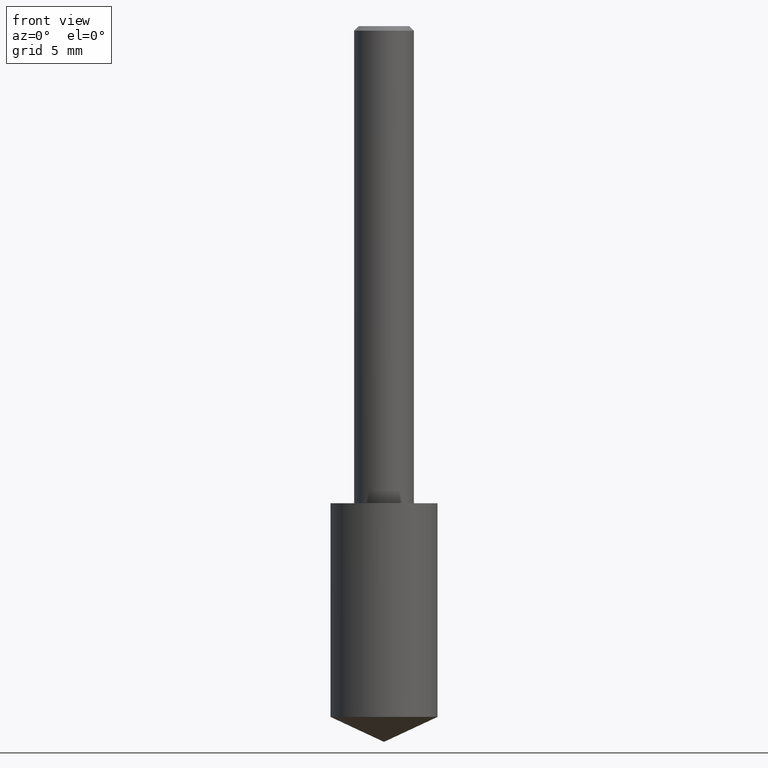
[diagram: clean part render]
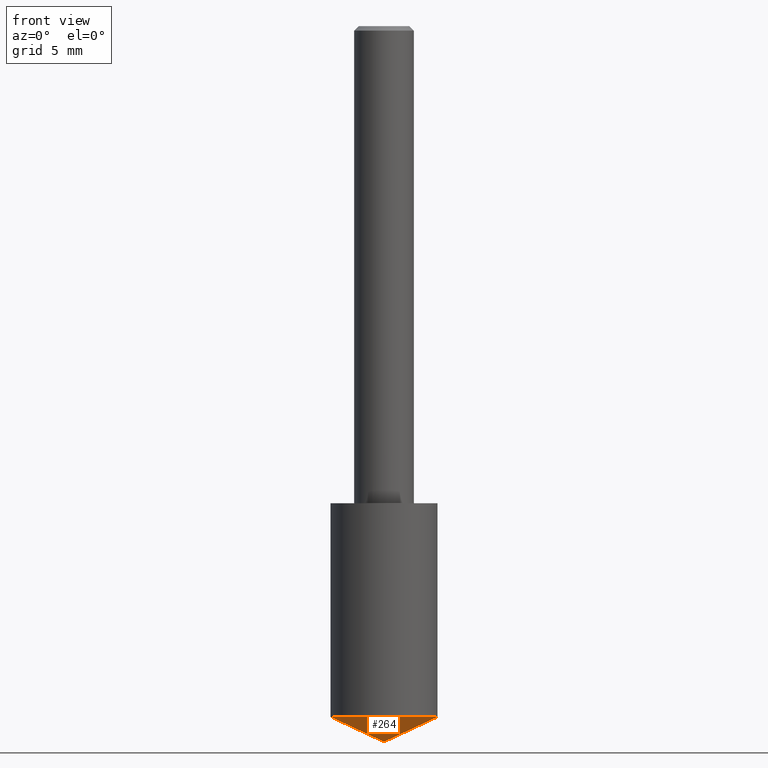
[diagram: same view with one face highlighted and labeled with its STEP entity id]
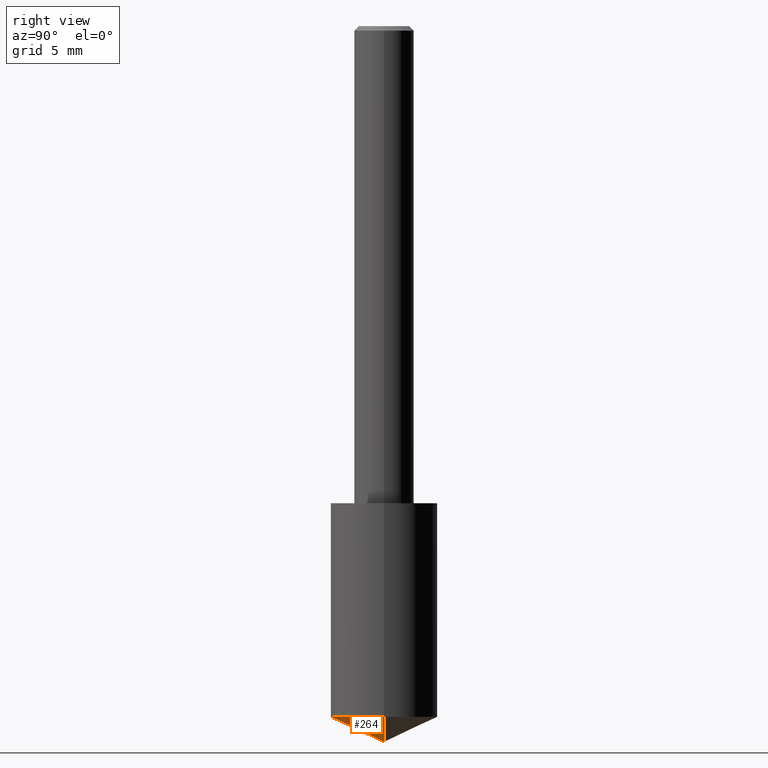
[diagram: same view with one face highlighted and labeled with its STEP entity id]
A machine part, front view. The second image highlights one B-rep face of the part: STEP entity #264.
A second angle (right view) of the same face is appended — the face is thin or edge-on in the first view.
In plain terms, the highlighted conical surface has half-angle 65 deg.
Its self-contained STEP definition (entity closure, byte-faithful):
#10 = DIRECTION ( 'NONE',  ( -2.445468806185136597E-29, 3.491481338843145583E-15, 1.000000000000000000 ) ) ;
#23 = EDGE_CURVE ( 'NONE', #191, #187, #283, .T. ) ;
#33 = CARTESIAN_POINT ( 'NONE',  ( 3.668203209277704895E-29, -5.237222008264718177E-15, -1.500000000000000222 ) ) ;
#39 = EDGE_LOOP ( 'NONE', ( #64, #318, #333 ) ) ;
#44 = CARTESIAN_POINT ( 'NONE',  ( 0.1121999999999999803, -5.838037097303720195E-15, -1.447680280755009541 ) ) ;
#48 = EDGE_CURVE ( 'NONE', #291, #191, #268, .T. ) ;
#64 = ORIENTED_EDGE ( 'NONE', *, *, #48, .F. ) ;
#65 = VECTOR ( 'NONE', #238, 39.37007874015748143 ) ;
#90 = DIRECTION ( 'NONE',  ( 1.000000000000000000, -6.982962677686266711E-15, 0.000000000000000000 ) ) ;
#110 = AXIS2_PLACEMENT_3D ( 'NONE', #121, #228, #307 ) ;
#121 = CARTESIAN_POINT ( 'NONE',  ( 3.540256967915716631E-29, -5.054548684867320994E-15, -1.447680280755009541 ) ) ;
#122 = DIRECTION ( 'NONE',  ( 0.9063077870366507138, -4.853149677051390623E-15, 0.4226182617406978315 ) ) ;
#146 = CARTESIAN_POINT ( 'NONE',  ( -0.1121999999999999803, -4.257319735344488824E-15, -1.447680280755009541 ) ) ;
#150 = VECTOR ( 'NONE', #122, 39.37007874015748143 ) ;
#152 = EDGE_CURVE ( 'NONE', #291, #187, #297, .T. ) ;
#160 = AXIS2_PLACEMENT_3D ( 'NONE', #175, #10, #90 ) ;
#175 = CARTESIAN_POINT ( 'NONE',  ( -9.261009624683002666E-28, 1.322226732217803884E-13, 37.87007874015748143 ) ) ;
#187 = VERTEX_POINT ( 'NONE', #44 ) ;
#190 = CARTESIAN_POINT ( 'NONE',  ( 3.668203209277704895E-29, -5.237222008264718177E-15, -1.500000000000000222 ) ) ;
#191 = VERTEX_POINT ( 'NONE', #146 ) ;
#228 = DIRECTION ( 'NONE',  ( -2.445468806185136597E-29, 3.491481338843145583E-15, 1.000000000000000000 ) ) ;
#238 = DIRECTION ( 'NONE',  ( -0.9063077870366507138, 7.915267918739014631E-15, 0.4226182617406978315 ) ) ;
#264 = ADVANCED_FACE ( 'NONE', ( #303 ), #312, .T. ) ;
#268 = LINE ( 'NONE', #33, #65 ) ;
#278 = CARTESIAN_POINT ( 'NONE',  ( 3.668203209277704895E-29, -5.237222008264718177E-15, -1.500000000000000222 ) ) ;
#283 = CIRCLE ( 'NONE', #110, 0.1122000000000000081 ) ;
#291 = VERTEX_POINT ( 'NONE', #190 ) ;
#297 = LINE ( 'NONE', #278, #150 ) ;
#303 = FACE_OUTER_BOUND ( 'NONE', #39, .T. ) ;
#307 = DIRECTION ( 'NONE',  ( 1.000000000000000000, -6.982962677686266711E-15, 0.000000000000000000 ) ) ;
#312 = CONICAL_SURFACE ( 'NONE', #160, 84.42940631927434936, 1.134464013796316006 ) ;
#318 = ORIENTED_EDGE ( 'NONE', *, *, #152, .T. ) ;
#333 = ORIENTED_EDGE ( 'NONE', *, *, #23, .F. ) ;